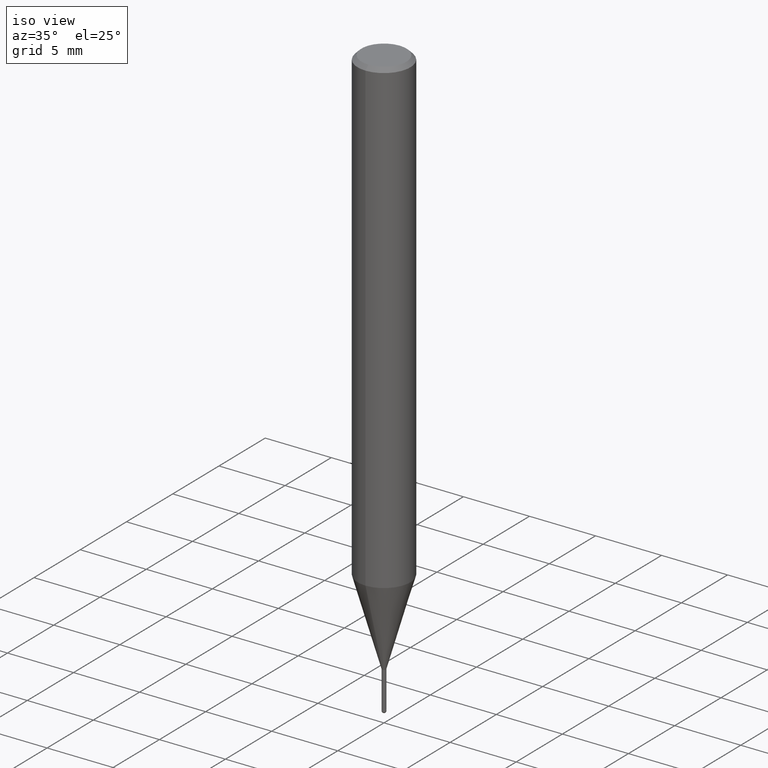
[diagram: clean part render]
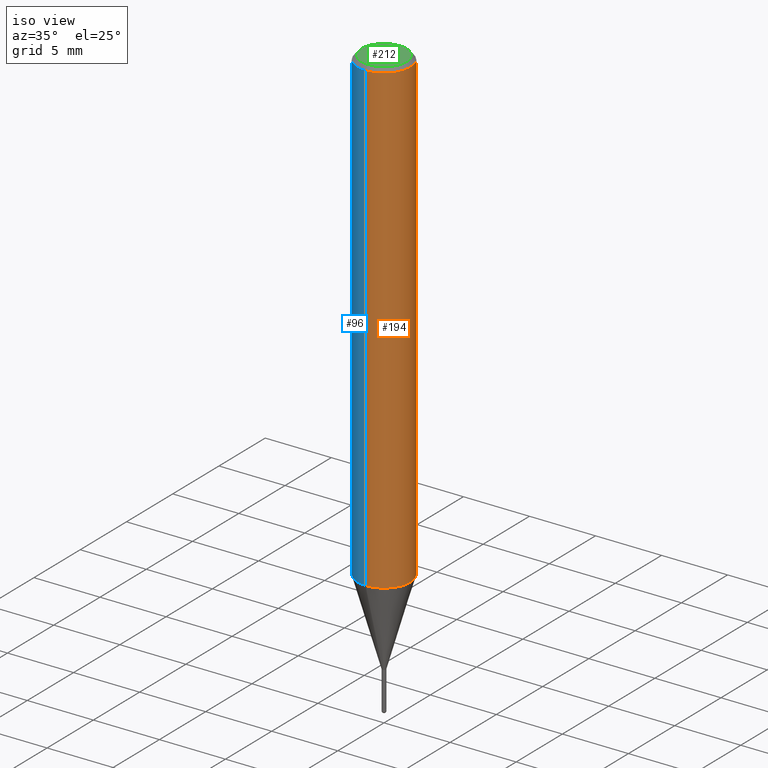
[diagram: same view with three faces highlighted in distinct colors, each labeled with its STEP entity id]
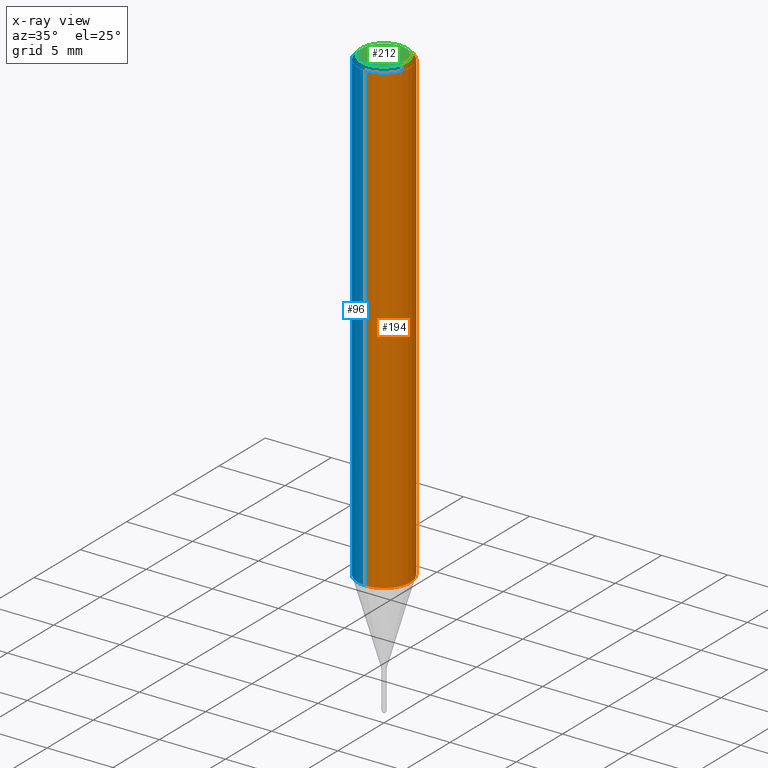
[diagram: x-ray of the same camera — body ghosted, the three highlighted faces saturated]
A machine part, iso view with three faces highlighted in distinct colors.
The next image is the same camera in x-ray (body ghosted, the three faces saturated) — at least one of them is partly hidden behind the body in this view.
Their STEP definitions:

[orange] entity #194 — the highlighted cylindrical surface (edge-blend (fillet) strip) has radius 2 mm, axis along (-0, -0, 1).
#106=VERTEX_POINT('',#251);
#120=VERTEX_POINT('',#267);
#126=EDGE_CURVE('',#106,#120,#273,.T.);
#142=VERTEX_POINT('',#290);
#176=EDGE_CURVE('',#142,#120,#330,.T.);
#178=VERTEX_POINT('',#332);
#184=EDGE_CURVE('',#178,#142,#338,.T.);
#190=EDGE_CURVE('',#106,#178,#344,.T.);
#194=ADVANCED_FACE('',(#348),#349,.T.);
#251=CARTESIAN_POINT('',(0.0,2.0,-0.299999999999997));
#267=CARTESIAN_POINT('',(2.44921270764475E-016,-2.0,-0.299999999999997));
#273=CIRCLE('',#433,2.0);
#290=CARTESIAN_POINT('',(2.44921270764475E-016,-2.0,-35.531));
#330=LINE('',#502,#503);
#332=CARTESIAN_POINT('',(0.0,2.0,-35.531));
#338=CIRCLE('',#514,2.0);
#344=LINE('',#522,#523);
#348=FACE_OUTER_BOUND('',#528,.T.);
#349=CYLINDRICAL_SURFACE('',#529,2.0);
#433=AXIS2_PLACEMENT_3D('',#609,#610,#611);
#502=CARTESIAN_POINT('',(2.44921270764475E-016,-2.0,-17.9155));
#503=VECTOR('',#690,1.0);
#514=AXIS2_PLACEMENT_3D('',#692,#693,#694);
#522=CARTESIAN_POINT('',(-2.44921270764475E-016,2.0,-17.9155));
#523=VECTOR('',#698,1.0);
#528=EDGE_LOOP('',(#703,#704,#705,#706));
#529=AXIS2_PLACEMENT_3D('',#707,#708,#709);
#609=CARTESIAN_POINT('',(0.0,0.0,-0.299999999999997));
#610=DIRECTION('',(0.0,0.0,-1.0));
#611=DIRECTION('',(0.0,1.0,0.0));
#690=DIRECTION('',(-0.0,-0.0,1.0));
#692=CARTESIAN_POINT('',(0.0,0.0,-35.531));
#693=DIRECTION('',(0.0,0.0,-1.0));
#694=DIRECTION('',(0.0,1.0,0.0));
#698=DIRECTION('',(0.0,0.0,-1.0));
#703=ORIENTED_EDGE('',*,*,#190,.F.);
#704=ORIENTED_EDGE('',*,*,#126,.T.);
#705=ORIENTED_EDGE('',*,*,#176,.F.);
#706=ORIENTED_EDGE('',*,*,#184,.F.);
#707=CARTESIAN_POINT('',(0.0,0.0,-17.9155));
#708=DIRECTION('',(-0.0,-0.0,1.0));
#709=DIRECTION('',(0.0,1.0,0.0));

[blue] entity #96 — the highlighted cylindrical surface (edge-blend (fillet) strip) has radius 2 mm, axis along (-0, -0, 1).
#96=ADVANCED_FACE('',(#238),#239,.T.);
#106=VERTEX_POINT('',#251);
#120=VERTEX_POINT('',#267);
#140=EDGE_CURVE('',#120,#106,#288,.T.);
#142=VERTEX_POINT('',#290);
#150=EDGE_CURVE('',#142,#178,#299,.T.);
#176=EDGE_CURVE('',#142,#120,#330,.T.);
#178=VERTEX_POINT('',#332);
#190=EDGE_CURVE('',#106,#178,#344,.T.);
#238=FACE_OUTER_BOUND('',#388,.T.);
#239=CYLINDRICAL_SURFACE('',#389,2.0);
#251=CARTESIAN_POINT('',(0.0,2.0,-0.299999999999997));
#267=CARTESIAN_POINT('',(2.44921270764475E-016,-2.0,-0.299999999999997));
#288=CIRCLE('',#453,2.0);
#290=CARTESIAN_POINT('',(2.44921270764475E-016,-2.0,-35.531));
#299=CIRCLE('',#467,2.0);
#330=LINE('',#502,#503);
#332=CARTESIAN_POINT('',(0.0,2.0,-35.531));
#344=LINE('',#522,#523);
#388=EDGE_LOOP('',(#566,#567,#568,#569));
#389=AXIS2_PLACEMENT_3D('',#570,#571,#572);
#453=AXIS2_PLACEMENT_3D('',#627,#628,#629);
#467=AXIS2_PLACEMENT_3D('',#639,#640,#641);
#502=CARTESIAN_POINT('',(2.44921270764475E-016,-2.0,-17.9155));
#503=VECTOR('',#690,1.0);
#522=CARTESIAN_POINT('',(-2.44921270764475E-016,2.0,-17.9155));
#523=VECTOR('',#698,1.0);
#566=ORIENTED_EDGE('',*,*,#190,.T.);
#567=ORIENTED_EDGE('',*,*,#150,.F.);
#568=ORIENTED_EDGE('',*,*,#176,.T.);
#569=ORIENTED_EDGE('',*,*,#140,.T.);
#570=CARTESIAN_POINT('',(0.0,0.0,-17.9155));
#571=DIRECTION('',(-0.0,-0.0,1.0));
#572=DIRECTION('',(0.0,1.0,0.0));
#627=CARTESIAN_POINT('',(0.0,0.0,-0.299999999999997));
#628=DIRECTION('',(0.0,0.0,-1.0));
#629=DIRECTION('',(0.0,1.0,0.0));
#639=CARTESIAN_POINT('',(0.0,0.0,-35.531));
#640=DIRECTION('',(0.0,0.0,-1.0));
#641=DIRECTION('',(0.0,1.0,0.0));
#690=DIRECTION('',(-0.0,-0.0,1.0));
#698=DIRECTION('',(0.0,0.0,-1.0));

[green] entity #212 — the highlighted planar face has unit normal (-0, 0, 1).
#102=VERTEX_POINT('',#246);
#138=EDGE_CURVE('',#208,#102,#286,.T.);
#206=EDGE_CURVE('',#102,#208,#362,.T.);
#208=VERTEX_POINT('',#364);
#212=ADVANCED_FACE('',(#368),#369,.T.);
#246=CARTESIAN_POINT('',(2.08183080149804E-016,-1.7,0.0));
#286=CIRCLE('',#450,1.7);
#362=CIRCLE('',#546,1.7);
#364=CARTESIAN_POINT('',(0.0,1.7,0.0));
#368=FACE_OUTER_BOUND('',#553,.T.);
#369=PLANE('',#554);
#450=AXIS2_PLACEMENT_3D('',#624,#625,#626);
#546=AXIS2_PLACEMENT_3D('',#722,#723,#724);
#553=EDGE_LOOP('',(#729,#730));
#554=AXIS2_PLACEMENT_3D('',#731,#732,#733);
#624=CARTESIAN_POINT('',(0.0,0.0,0.0));
#625=DIRECTION('',(0.0,0.0,-1.0));
#626=DIRECTION('',(0.0,1.0,0.0));
#722=CARTESIAN_POINT('',(0.0,0.0,0.0));
#723=DIRECTION('',(0.0,0.0,-1.0));
#724=DIRECTION('',(0.0,1.0,0.0));
#729=ORIENTED_EDGE('',*,*,#138,.F.);
#730=ORIENTED_EDGE('',*,*,#206,.F.);
#731=CARTESIAN_POINT('',(0.0,0.85,0.0));
#732=DIRECTION('',(-0.0,0.0,1.0));
#733=DIRECTION('',(0.0,-1.0,0.0));